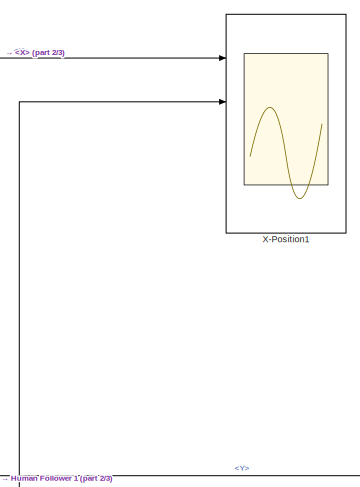
[diagram: root canvas - part 1/3, top center region]
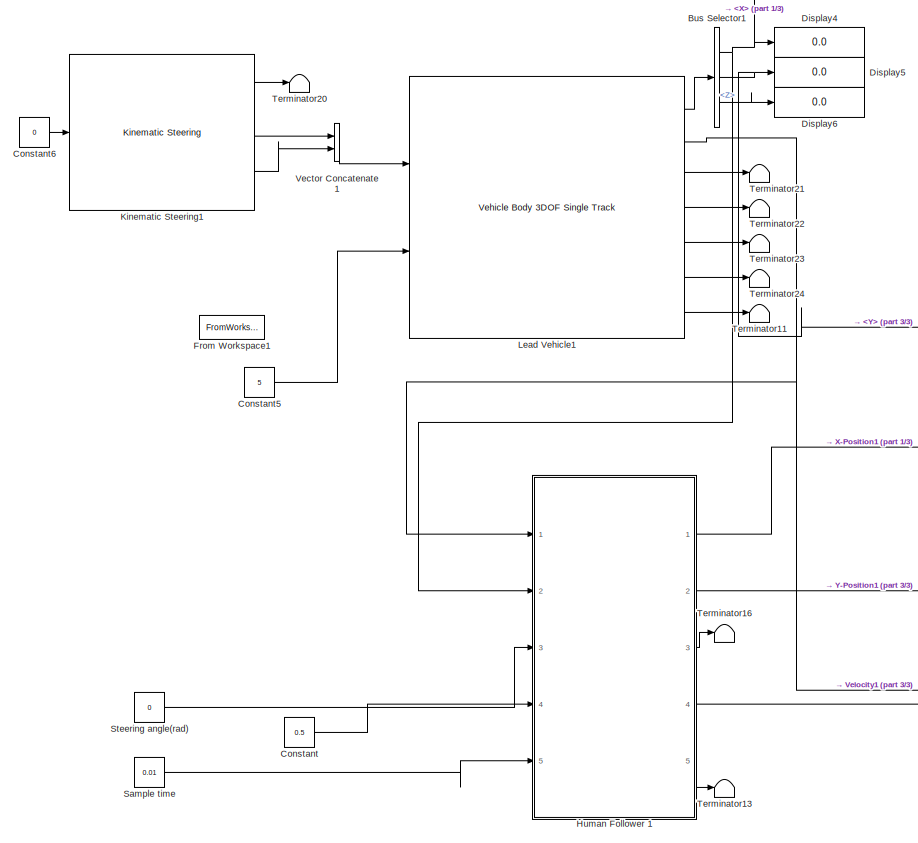
[diagram: root canvas - part 2/3, middle left region]
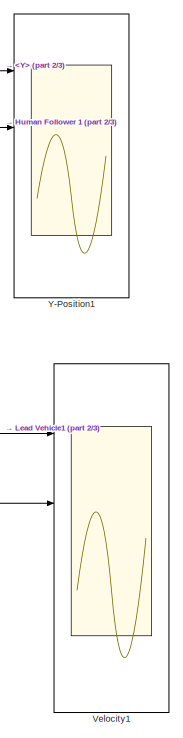
[diagram: root canvas - part 3/3, bottom right region]
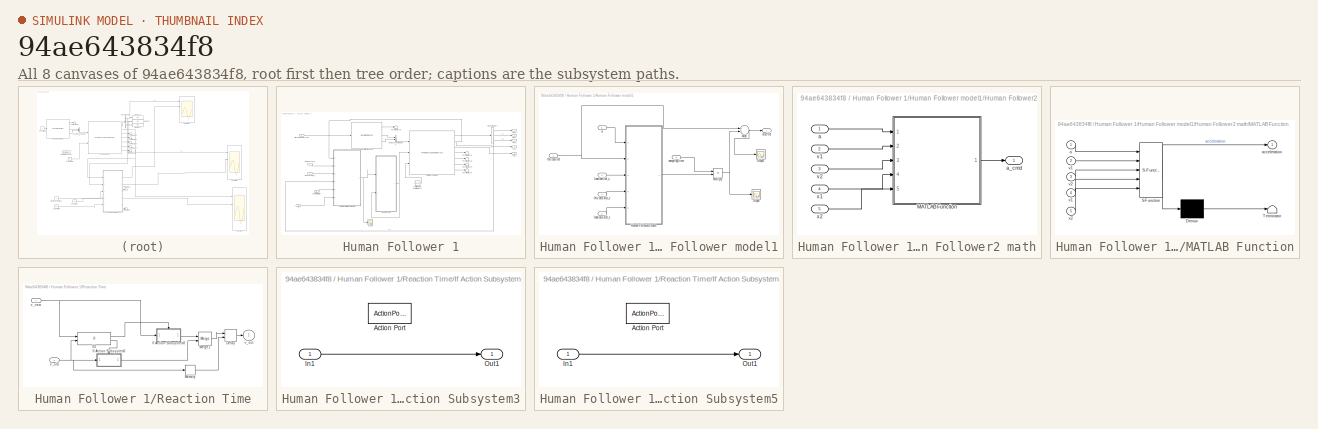
[diagram: thumbnail index - all 8 canvases of the model, root first then tree order]
MODEL slx_94ae643834f8
KIND model
CONFIG AbsTol = auto
CONFIG EnableMultiTasking = off
CONFIG FixedStep = auto
CONFIG MaxStep = auto
CONFIG MinStep = auto
CONFIG RelTol = 1e-3
CONFIG SampleTimeConstraint = Unconstrained
CONFIG Solver = VariableStepAuto
CONFIG SolverName = VariableStepAuto
CONFIG StartTime = 0.0
CONFIG StopTime = inf
BLOCK [BusSelector] Bus Selector1
  OutputAsBus = off
  OutputSignals = InertFrm.Geom.Disp.X,InertFrm.Geom.Disp.Y,InertFrm.Geom.Disp.Z
  Ports = [1, 3]
BLOCK [Constant] Constant
  Value = 0.5
BLOCK [Constant] Constant5
  Value = 5
BLOCK [Constant] Constant6
  Value = 0
BLOCK [Display] Display4
  Decimation = 1
  Ports = [1]
BLOCK [Display] Display5
  Decimation = 1
  Ports = [1]
BLOCK [Display] Display6
  Decimation = 1
  Ports = [1]
BLOCK [FromWorkspace] From Workspace1
  Commented = on
  SampleTime = 0.1
  VariableName = vel_car_1
  ZeroCross = on
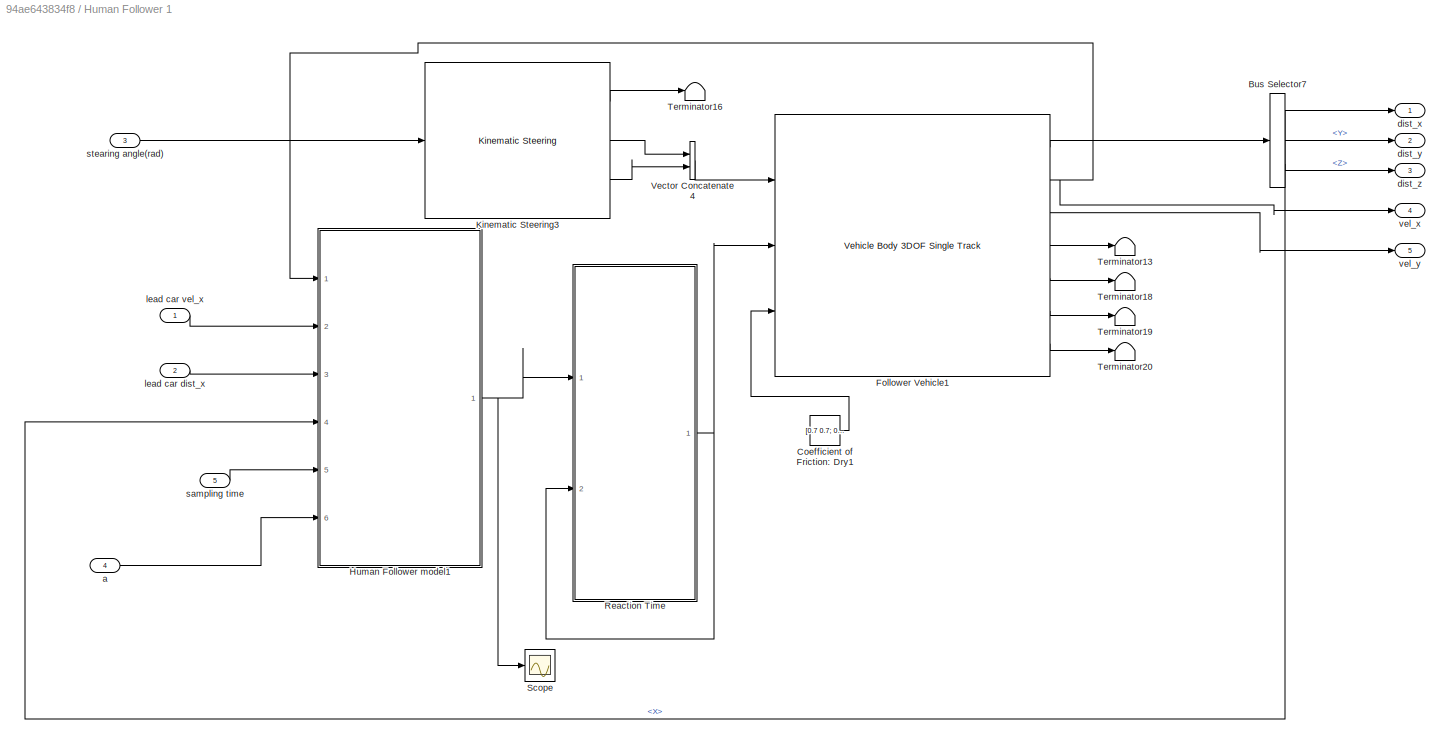
BLOCK [SubSystem] Human Follower 1
  Ports = [5, 5]
  RequestExecContextInheritance = off
BLOCK [BusSelector] Human Follower 1/Bus Selector7
  OutputAsBus = off
  OutputSignals = InertFrm.Cg.Disp.X,InertFrm.Cg.Disp.Y,InertFrm.Cg.Disp.Z
  Ports = [1, 3]
BLOCK [Constant] Human Follower 1/Coefficient of Friction: Dry1
  Value = [0.7 0.7; 0.7 0.7]
BLOCK [Reference] Human Follower 1/Follower Vehicle1  REF=autolibshared/Vehicle Body 3DOF Single Track
  Ports = [3, 7]
  SourceBlock = autolibshared/Vehicle Body 3DOF Single Track
  SourceProductBaseCode = PW
  SourceProductName = Powertrain Blockset
  SourceType = Vehicle Body 3DOF Lateral
BLOCK [SubSystem] Human Follower 1/Human Follower model1
  Ports = [6, 1]
  RequestExecContextInheritance = off
BLOCK [Sum] Human Follower 1/Human Follower model1/Add
  InputSameDT = off
  OutDataTypeStr = Inherit: Inherit via internal rule
  Ports = [2, 1]
  SaturateOnIntegerOverflow = off
BLOCK [SubSystem] Human Follower 1/Human Follower model1/Human Follower2 math
  Ports = [5, 1]
  RequestExecContextInheritance = off
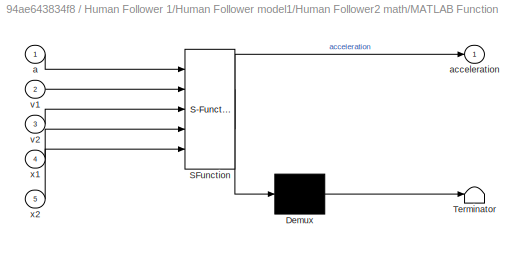
BLOCK [SubSystem] Human Follower 1/Human Follower model1/Human Follower2 math/MATLAB Function
  ErrorFcn = Stateflow.Translate.translate
  PermitHierarchicalResolution = ExplicitOnly
  Ports = [5, 1]
  RequestExecContextInheritance = off
  SFBlockType = MATLAB Function
  TreatAsAtomicUnit = on
BLOCK [Demux] Human Follower 1/Human Follower model1/Human Follower2 math/MATLAB Function/ Demux 
  Outputs = 1
  Ports = [1, 1]
BLOCK [S-Function] Human Follower 1/Human Follower model1/Human Follower2 math/MATLAB Function/ SFunction 
  EnableBusSupport = on
  FunctionName = sf_sfun
  PortCounts = [5 2]
  Ports = [5, 2]
  SFcnIsStateOwnerBlock = off
  SFunctionDeploymentMode = off
  Tag = Stateflow S-Function carPlant_BandoHumanFollower_4 2
BLOCK [Terminator] Human Follower 1/Human Follower model1/Human Follower2 math/MATLAB Function/ Terminator 
BLOCK [Inport] Human Follower 1/Human Follower model1/Human Follower2 math/MATLAB Function/a
  IconDisplay = Port number
BLOCK [Outport] Human Follower 1/Human Follower model1/Human Follower2 math/MATLAB Function/acceleration
  IconDisplay = Port number
BLOCK [Inport] Human Follower 1/Human Follower model1/Human Follower2 math/MATLAB Function/v1
  IconDisplay = Port number
  Port = 2
BLOCK [Inport] Human Follower 1/Human Follower model1/Human Follower2 math/MATLAB Function/v2
  IconDisplay = Port number
  Port = 3
BLOCK [Inport] Human Follower 1/Human Follower model1/Human Follower2 math/MATLAB Function/x1
  IconDisplay = Port number
  Port = 4
BLOCK [Inport] Human Follower 1/Human Follower model1/Human Follower2 math/MATLAB Function/x2
  IconDisplay = Port number
  Port = 5
BLOCK [Inport] Human Follower 1/Human Follower model1/Human Follower2 math/a
  IconDisplay = Port number
BLOCK [Outport] Human Follower 1/Human Follower model1/Human Follower2 math/a_cmd
  IconDisplay = Port number
BLOCK [Inport] Human Follower 1/Human Follower model1/Human Follower2 math/v1
  IconDisplay = Port number
  Port = 2
BLOCK [Inport] Human Follower 1/Human Follower model1/Human Follower2 math/v2
  IconDisplay = Port number
  Port = 3
BLOCK [Inport] Human Follower 1/Human Follower model1/Human Follower2 math/x1
  IconDisplay = Port number
  Port = 4
BLOCK [Inport] Human Follower 1/Human Follower model1/Human Follower2 math/x2
  IconDisplay = Port number
  Port = 5
BLOCK [Product] Human Follower 1/Human Follower model1/Multiply
  InputSameDT = off
  OutDataTypeStr = Inherit: Inherit via internal rule
  Ports = [2, 1]
  RndMeth = Floor
  SaturateOnIntegerOverflow = off
BLOCK [Scope] Human Follower 1/Human Follower model1/Scope
  Floating = off
  NumInputPorts = 1
  Ports = [1]
  ScopeSpecificationString = Simulink.scopes.TimeScopeBlockCfg('CurrentConfiguration', extmgr.ConfigurationSet(extmgr.Configuration('Core','General UI',true),extmgr.Configuration('Core','Source UI',true),extmgr.Configuration('Sources','WiredSimulink',true,'DataLoggingVariableName','ScopeData1'),extmgr.Configuration('Visuals','Time Domain',true,'SerializedDisplays',{struct('MinYLimReal','0.000000998','MaxYLimReal','0.000001021...<+1452ch>
BLOCK [Scope] Human Follower 1/Human Follower model1/Scope1
  Floating = off
  NumInputPorts = 1
  Ports = [1]
  ScopeSpecificationString = Simulink.scopes.TimeScopeBlockCfg('CurrentConfiguration', extmgr.ConfigurationSet(extmgr.Configuration('Core','General UI',true),extmgr.Configuration('Core','Source UI',true),extmgr.Configuration('Sources','WiredSimulink',true,'DataLoggingVariableName','ScopeData2'),extmgr.Configuration('Visuals','Time Domain',true,'SerializedDisplays',{struct('MinYLimReal','0.00012','MaxYLimReal','0.00909','YLabe...<+1389ch>
BLOCK [Inport] Human Follower 1/Human Follower model1/a
  IconDisplay = Port number
  Port = 6
BLOCK [Outport] Human Follower 1/Human Follower model1/cmd Vel
  IconDisplay = Port number
BLOCK [Inport] Human Follower 1/Human Follower model1/lead cars dist_x
  IconDisplay = Port number
  Port = 3
BLOCK [Inport] Human Follower 1/Human Follower model1/lead cars vel_x
  IconDisplay = Port number
  Port = 2
BLOCK [Inport] Human Follower 1/Human Follower model1/sampling time
  IconDisplay = Port number
  Port = 5
BLOCK [Inport] Human Follower 1/Human Follower model1/this cars dist_x
  IconDisplay = Port number
  Port = 4
BLOCK [Inport] Human Follower 1/Human Follower model1/this cars vel
  IconDisplay = Port number
BLOCK [Reference] Human Follower 1/Kinematic Steering3  REF=vehdynlibsteering/Kinematic Steering
  Ports = [1, 3]
  SourceBlock = vehdynlibsteering/Kinematic Steering
  SourceProductBaseCode = VE
  SourceProductName = Vehicle Dynamics Blockset
  SourceType = Kinematic Steering
BLOCK [SubSystem] Human Follower 1/Reaction Time
  Ports = [2, 1]
  RequestExecContextInheritance = off
BLOCK [Delay] Human Follower 1/Reaction Time/Delay
  DelayLength = 3
  InitialConditionSource = Input port
  InputPortMap = u0,p4
  Ports = [2, 1]
BLOCK [SubSystem] Human Follower 1/Reaction Time/If Action Subsystem3
  Ports = [1, 1, 0, 0, 0, 0, 0, 1]
  RequestExecContextInheritance = off
  TreatAsAtomicUnit = on
BLOCK [ActionPort] Human Follower 1/Reaction Time/If Action Subsystem3/Action Port
  ActionType = then
BLOCK [Inport] Human Follower 1/Reaction Time/If Action Subsystem3/In1
  IconDisplay = Port number
BLOCK [Outport] Human Follower 1/Reaction Time/If Action Subsystem3/Out1
  IconDisplay = Port number
BLOCK [SubSystem] Human Follower 1/Reaction Time/If Action Subsystem5
  Ports = [1, 1, 0, 0, 0, 0, 0, 1]
  RequestExecContextInheritance = off
  TreatAsAtomicUnit = on
BLOCK [ActionPort] Human Follower 1/Reaction Time/If Action Subsystem5/Action Port
  ActionType = else
BLOCK [Inport] Human Follower 1/Reaction Time/If Action Subsystem5/In1
  IconDisplay = Port number
BLOCK [Outport] Human Follower 1/Reaction Time/If Action Subsystem5/Out1
  IconDisplay = Port number
BLOCK [If] Human Follower 1/Reaction Time/If2
  IfExpression = u2 ~= u1
  NumInputs = 2
  Ports = [2, 2]
BLOCK [Memory] Human Follower 1/Reaction Time/Memory
BLOCK [Merge] Human Follower 1/Reaction Time/Merge1
  Ports = [2, 1]
BLOCK [Inport] Human Follower 1/Reaction Time/v_new
  IconDisplay = Port number
BLOCK [Inport] Human Follower 1/Reaction Time/v_old
  IconDisplay = Port number
  Port = 2
BLOCK [Outport] Human Follower 1/Reaction Time/v_out
  IconDisplay = Port number
BLOCK [Scope] Human Follower 1/Scope
  Floating = off
  NumInputPorts = 1
  Ports = [1]
  ScopeSpecificationString = Simulink.scopes.TimeScopeBlockCfg('CurrentConfiguration', extmgr.ConfigurationSet(extmgr.Configuration('Core','General UI',true),extmgr.Configuration('Core','Source UI',true),extmgr.Configuration('Sources','WiredSimulink',true),extmgr.Configuration('Visuals','Time Domain',true,'SerializedDisplays',{struct('MinYLimReal','0.07024','MaxYLimReal','0.07527','YLabelReal','','MinYLimMag','0.07024','MaxYL...<+1368ch>
BLOCK [Terminator] Human Follower 1/Terminator13
BLOCK [Terminator] Human Follower 1/Terminator16
BLOCK [Terminator] Human Follower 1/Terminator18
BLOCK [Terminator] Human Follower 1/Terminator19
BLOCK [Terminator] Human Follower 1/Terminator20
BLOCK [Concatenate] Human Follower 1/Vector Concatenate4
  Ports = [2, 1]
BLOCK [Inport] Human Follower 1/a
  IconDisplay = Port number
  Port = 4
BLOCK [Outport] Human Follower 1/dist_x
  IconDisplay = Port number
BLOCK [Outport] Human Follower 1/dist_y
  IconDisplay = Port number
  Port = 2
BLOCK [Outport] Human Follower 1/dist_z
  IconDisplay = Port number
  Port = 3
BLOCK [Inport] Human Follower 1/lead car dist_x
  IconDisplay = Port number
  Port = 2
BLOCK [Inport] Human Follower 1/lead car vel_x
  IconDisplay = Port number
BLOCK [Inport] Human Follower 1/sampling time
  IconDisplay = Port number
  Port = 5
BLOCK [Inport] Human Follower 1/stearing angle(rad)
  IconDisplay = Port number
  Port = 3
BLOCK [Outport] Human Follower 1/vel_x
  IconDisplay = Port number
  Port = 4
BLOCK [Outport] Human Follower 1/vel_y
  IconDisplay = Port number
  Port = 5
BLOCK [Reference] Kinematic Steering1  REF=vehdynlibsteering/Kinematic Steering
  Ports = [1, 3]
  SourceBlock = vehdynlibsteering/Kinematic Steering
  SourceProductBaseCode = VE
  SourceProductName = Vehicle Dynamics Blockset
  SourceType = Kinematic Steering
BLOCK [Reference] Lead Vehicle1  REF=autolibshared/Vehicle Body 3DOF Single Track
  Ports = [2, 7]
  SourceBlock = autolibshared/Vehicle Body 3DOF Single Track
  SourceProductBaseCode = PW
  SourceProductName = Powertrain Blockset
  SourceType = Vehicle Body 3DOF Lateral
BLOCK [Constant] Sample time
  Value = 0.01
BLOCK [Constant] Steering angle(rad)
  Value = 0
BLOCK [Terminator] Terminator11
BLOCK [Terminator] Terminator13
BLOCK [Terminator] Terminator16
BLOCK [Terminator] Terminator20
BLOCK [Terminator] Terminator21
BLOCK [Terminator] Terminator22
BLOCK [Terminator] Terminator23
BLOCK [Terminator] Terminator24
BLOCK [Concatenate] Vector Concatenate1
  Ports = [2, 1]
BLOCK [Scope] Velocity1
  Floating = off
  NumInputPorts = 4
  Ports = [4]
  ScopeSpecificationString = Simulink.scopes.TimeScopeBlockCfg('CurrentConfiguration', extmgr.ConfigurationSet(extmgr.Configuration('Core','General UI',true),extmgr.Configuration('Core','Source UI',true),extmgr.Configuration('Sources','WiredSimulink',true,'DataLoggingVariableName','ScopeData3','DataLogging',true,'DataLoggingSaveFormat','StructureWithTime'),extmgr.Configuration('Visuals','Time Domain',true,'SerializedDisplays'...<+1524ch>
BLOCK [Scope] X-Position1
  Floating = off
  NumInputPorts = 4
  Ports = [4]
  ScopeSpecificationString = Simulink.scopes.TimeScopeBlockCfg('CurrentConfiguration', extmgr.ConfigurationSet(extmgr.Configuration('Core','General UI',true),extmgr.Configuration('Core','Source UI',true),extmgr.Configuration('Sources','WiredSimulink',true,'DataLoggingVariableName','ScopeData4','DataLogging',true,'DataLoggingSaveFormat','StructureWithTime'),extmgr.Configuration('Visuals','Time Domain',true,'SerializedDisplays'...<+1701ch>
BLOCK [Scope] Y-Position1
  Floating = off
  NumInputPorts = 4
  Ports = [4]
  ScopeSpecificationString = Simulink.scopes.TimeScopeBlockCfg('CurrentConfiguration', extmgr.ConfigurationSet(extmgr.Configuration('Core','General UI',true),extmgr.Configuration('Core','Source UI',true),extmgr.Configuration('Sources','WiredSimulink',true,'DataLoggingVariableName','ScopeData5','DataLoggingSaveFormat','StructureWithTime','DataLogging',true),extmgr.Configuration('Visuals','Time Domain',true,'SerializedDisplays'...<+1529ch>
NET Bus Selector1:1 -> Display4:1, Human Follower 1:2, X-Position1:1
NET Bus Selector1:2 -> Display5:1, Y-Position1:1
LINE Bus Selector1:3 -> Display6:1
LINE Constant5:1 -> Lead Vehicle1:2
LINE Constant6:1 -> Kinematic Steering1:1
LINE Constant:1 -> Human Follower 1:4
NET Human Follower 1/Bus Selector7:1 -> Human Follower 1/Human Follower model1:4, Human Follower 1/dist_x:1
LINE Human Follower 1/Bus Selector7:2 -> Human Follower 1/dist_y:1
LINE Human Follower 1/Bus Selector7:3 -> Human Follower 1/dist_z:1
LINE Human Follower 1/Coefficient of Friction: Dry1:1 -> Human Follower 1/Follower Vehicle1:3
LINE Human Follower 1/Follower Vehicle1:1 -> Human Follower 1/Bus Selector7:1
NET Human Follower 1/Follower Vehicle1:2 -> Human Follower 1/Human Follower model1:1, Human Follower 1/vel_x:1
LINE Human Follower 1/Follower Vehicle1:3 -> Human Follower 1/vel_y:1
LINE Human Follower 1/Follower Vehicle1:4 -> Human Follower 1/Terminator13:1
LINE Human Follower 1/Follower Vehicle1:5 -> Human Follower 1/Terminator18:1
LINE Human Follower 1/Follower Vehicle1:6 -> Human Follower 1/Terminator19:1
LINE Human Follower 1/Follower Vehicle1:7 -> Human Follower 1/Terminator20:1
NET Human Follower 1/Human Follower model1/Add:1 -> Human Follower 1/Human Follower model1/Scope1:1, Human Follower 1/Human Follower model1/cmd Vel:1
LINE Human Follower 1/Human Follower model1/Human Follower2 math/MATLAB Function:1 -> Human Follower 1/Human Follower model1/Human Follower2 math/a_cmd:1
LINE Human Follower 1/Human Follower model1/Human Follower2 math/a:1 -> Human Follower 1/Human Follower model1/Human Follower2 math/MATLAB Function:1
LINE Human Follower 1/Human Follower model1/Human Follower2 math/v1:1 -> Human Follower 1/Human Follower model1/Human Follower2 math/MATLAB Function:2
LINE Human Follower 1/Human Follower model1/Human Follower2 math/v2:1 -> Human Follower 1/Human Follower model1/Human Follower2 math/MATLAB Function:3
LINE Human Follower 1/Human Follower model1/Human Follower2 math/x1:1 -> Human Follower 1/Human Follower model1/Human Follower2 math/MATLAB Function:4
LINE Human Follower 1/Human Follower model1/Human Follower2 math/x2:1 -> Human Follower 1/Human Follower model1/Human Follower2 math/MATLAB Function:5
LINE Human Follower 1/Human Follower model1/Human Follower2 math:1 -> Human Follower 1/Human Follower model1/Multiply:2
NET Human Follower 1/Human Follower model1/Multiply:1 -> Human Follower 1/Human Follower model1/Add:2, Human Follower 1/Human Follower model1/Scope:1
LINE Human Follower 1/Human Follower model1/a:1 -> Human Follower 1/Human Follower model1/Human Follower2 math:1
LINE Human Follower 1/Human Follower model1/lead cars dist_x:1 -> Human Follower 1/Human Follower model1/Human Follower2 math:5
LINE Human Follower 1/Human Follower model1/lead cars vel_x:1 -> Human Follower 1/Human Follower model1/Human Follower2 math:3
LINE Human Follower 1/Human Follower model1/sampling time:1 -> Human Follower 1/Human Follower model1/Multiply:1
LINE Human Follower 1/Human Follower model1/this cars dist_x:1 -> Human Follower 1/Human Follower model1/Human Follower2 math:4
NET Human Follower 1/Human Follower model1/this cars vel:1 -> Human Follower 1/Human Follower model1/Add:1, Human Follower 1/Human Follower model1/Human Follower2 math:2
NET Human Follower 1/Human Follower model1:1 -> Human Follower 1/Reaction Time:1, Human Follower 1/Scope:1
LINE Human Follower 1/Kinematic Steering3:1 -> Human Follower 1/Terminator16:1
LINE Human Follower 1/Kinematic Steering3:2 -> Human Follower 1/Vector Concatenate4:1
LINE Human Follower 1/Kinematic Steering3:3 -> Human Follower 1/Vector Concatenate4:2
LINE Human Follower 1/Reaction Time/Delay:1 -> Human Follower 1/Reaction Time/v_out:1
LINE Human Follower 1/Reaction Time/If Action Subsystem3/In1:1 -> Human Follower 1/Reaction Time/If Action Subsystem3/Out1:1
LINE Human Follower 1/Reaction Time/If Action Subsystem3:1 -> Human Follower 1/Reaction Time/Merge1:1
LINE Human Follower 1/Reaction Time/If Action Subsystem5/In1:1 -> Human Follower 1/Reaction Time/If Action Subsystem5/Out1:1
LINE Human Follower 1/Reaction Time/If Action Subsystem5:1 -> Human Follower 1/Reaction Time/Merge1:2
LINE Human Follower 1/Reaction Time/If2:1 -> Human Follower 1/Reaction Time/If Action Subsystem3:ifaction
LINE Human Follower 1/Reaction Time/If2:2 -> Human Follower 1/Reaction Time/If Action Subsystem5:ifaction
LINE Human Follower 1/Reaction Time/Memory:1 -> Human Follower 1/Reaction Time/Delay:2
LINE Human Follower 1/Reaction Time/Merge1:1 -> Human Follower 1/Reaction Time/Delay:1
NET Human Follower 1/Reaction Time/v_new:1 -> Human Follower 1/Reaction Time/If Action Subsystem3:1, Human Follower 1/Reaction Time/If2:1
NET Human Follower 1/Reaction Time/v_old:1 -> Human Follower 1/Reaction Time/If Action Subsystem5:1, Human Follower 1/Reaction Time/If2:2, Human Follower 1/Reaction Time/Memory:1
NET Human Follower 1/Reaction Time:1 -> Human Follower 1/Follower Vehicle1:2, Human Follower 1/Reaction Time:2
LINE Human Follower 1/Vector Concatenate4:1 -> Human Follower 1/Follower Vehicle1:1
LINE Human Follower 1/a:1 -> Human Follower 1/Human Follower model1:6
LINE Human Follower 1/lead car dist_x:1 -> Human Follower 1/Human Follower model1:3
LINE Human Follower 1/lead car vel_x:1 -> Human Follower 1/Human Follower model1:2
LINE Human Follower 1/sampling time:1 -> Human Follower 1/Human Follower model1:5
LINE Human Follower 1/stearing angle(rad):1 -> Human Follower 1/Kinematic Steering3:1
LINE Human Follower 1:1 -> X-Position1:2
LINE Human Follower 1:2 -> Y-Position1:2
LINE Human Follower 1:3 -> Terminator16:1
LINE Human Follower 1:4 -> Velocity1:2
LINE Human Follower 1:5 -> Terminator13:1
LINE Kinematic Steering1:1 -> Terminator20:1
LINE Kinematic Steering1:2 -> Vector Concatenate1:1
LINE Kinematic Steering1:3 -> Vector Concatenate1:2
LINE Lead Vehicle1:1 -> Bus Selector1:1
NET Lead Vehicle1:2 -> Human Follower 1:1, Velocity1:1
LINE Lead Vehicle1:3 -> Terminator21:1
LINE Lead Vehicle1:4 -> Terminator22:1
LINE Lead Vehicle1:5 -> Terminator23:1
LINE Lead Vehicle1:6 -> Terminator24:1
LINE Lead Vehicle1:7 -> Terminator11:1
LINE Sample time:1 -> Human Follower 1:5
LINE Steering angle(rad):1 -> Human Follower 1:3
LINE Vector Concatenate1:1 -> Lead Vehicle1:1
note: NET lines group one-source signal fan-out (src -> all destinations, sorted); 1:1 wires keep LINE
CHART Human Follower 1/Human Follower model1/Human Follower2 math/MATLAB Function states=1 transitions=1
  STATE_LABEL 'eML_blk_kernel()'
  STATE_LABEL 'SCRIPT:\nfunction acceleration = fcn(a, v1, v2, x1, x2)\n\n\nif x2 == 0\n    x2 = 0.1;\nend\n\nacceleration = a*(v2 - v1) / (x2 - x1);\n'
